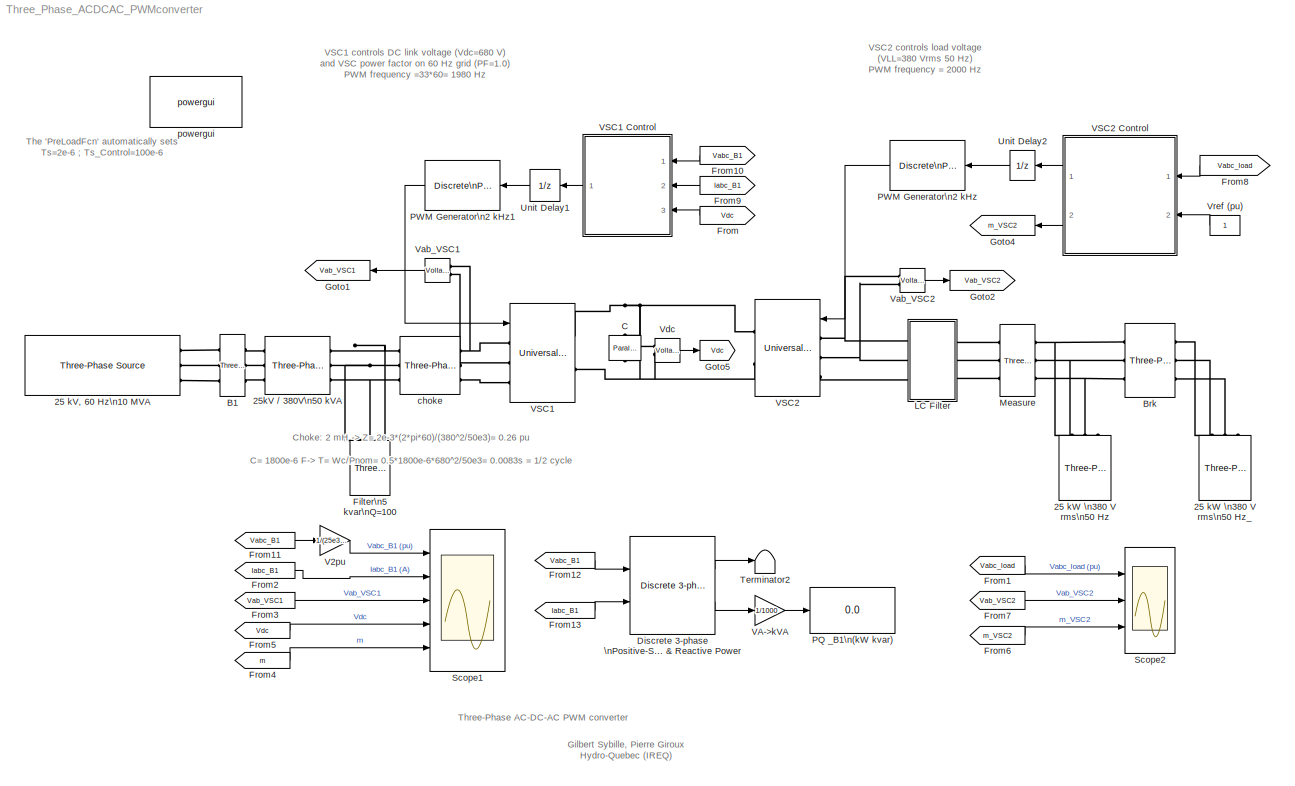
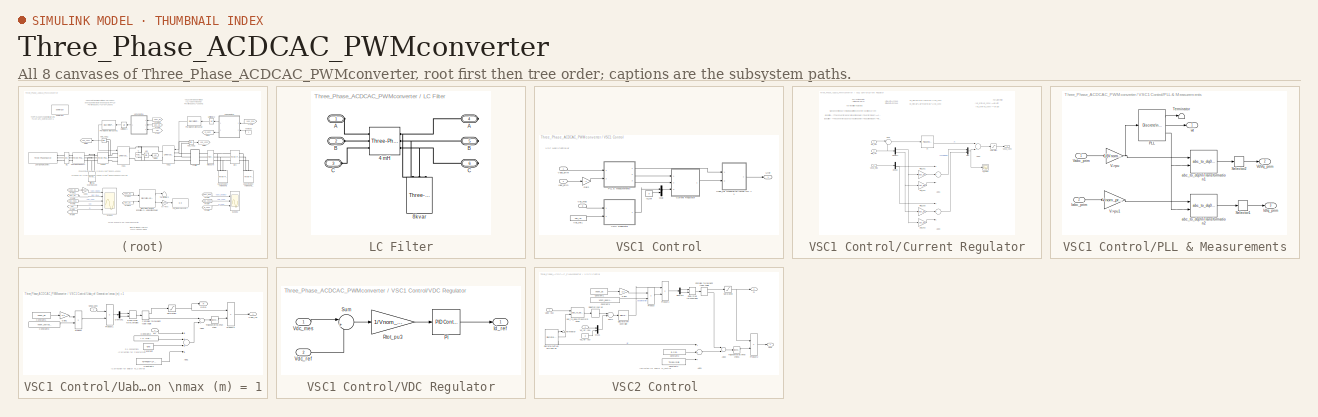
[diagram: thumbnail index - all 8 canvases of the model, root first then tree order]
MODEL Three_Phase_ACDCAC_PWMconverter
KIND model
CONFIG PreLoadFcn = Ts=2e-6;\nTs_Control=100e-6;
BLOCK [Reference] 25 kV, 60 Hz\n10 MVA  REF=powerlib/Electrical\nSources/Three-Phase Source
  BaseVoltage = 25e3
  BusType = swing
  Frequency = 60
  Inductance = 25e3^2/10e6/377
  InternalConnection = Yg
  NonIdealSource = on
  PhaseAngle = 0
  PhaseAngles_phases = [0 -120 +120]
  Ports = [0, 0, 0, 0, 0, 0, 3]
  Pref = 0
  Prefabc = [10e3, 10e3, 10e3]
  Qmax = inf
  Qmin = -inf
  Qref = 0
  Qrefabc = [0, 0, 0]
  RTWMemSecDataConstants = Inherit from model
  RTWMemSecDataInternal = Inherit from model
  RTWMemSecDataParameters = Inherit from model
  RTWMemSecFuncExecute = Inherit from model
  RTWMemSecFuncInitTerm = Inherit from model
  Resistance = 25e3^2/10e6/5
  SID = 1
  ShortCircuitLevel = 10e6
  SourceBlock = powerlib/Electrical\nSources/Three-Phase Source
  SourceProductBaseCode = PS
  SourceProductName = Simscape Electrical
  SourceType = Three-Phase Source
  SpecifyImpedance = on
  Voltage = 25e3
  VoltagePhases = off
  Voltage_phases = [25e3 25e3 25e3]/sqrt(3)
  XRratio = 5
BLOCK [Reference] 25 kW \n380 V rms\n50 Hz  REF=powerlib/Elements/Three-Phase\nParallel RLC Load
  ActivePower = 25e3
  AttributesFormatString = \\n
  CapacitivePower = 0
  Configuration = Y (grounded)
  InductivePower = 0
  LConnTagsString = A|B|C
  LoadType = constant Z
  Measurements = None
  NominalFrequency = 50
  NominalVoltage = 380
  Pabc = [10e3 9e3 11e3]
  Pabcp = [10e3 9e3 11e3]
  Ports = [0, 0, 0, 0, 0, 3]
  QCabc = [100 90 110]
  QCabcp = [100 90 110]
  QLabc = [100 90 110]
  QLabcp = [100 90 110]
  SID = 3
  SourceBlock = powerlib/Elements/Three-Phase\nParallel RLC Load
  SourceProductBaseCode = PS
  SourceProductName = Simscape Electrical
  SourceType = Three-Phase Parallel RLC Load
  UnbalancedPower = off
  Vabc = [1e3 1e3 1e3]
  Vabcp = [1e3 1e3 1e3]
BLOCK [Reference] 25 kW \n380 V rms\n50 Hz_  REF=powerlib/Elements/Three-Phase\nParallel RLC Load
  ActivePower = 25e3
  AttributesFormatString = \\n
  CapacitivePower = 0
  Configuration = Y (grounded)
  InductivePower = 0
  LConnTagsString = A|B|C
  LoadType = constant Z
  Measurements = None
  NominalFrequency = 50
  NominalVoltage = 380
  Pabc = [10e3 9e3 11e3]
  Pabcp = [10e3 9e3 11e3]
  Ports = [0, 0, 0, 0, 0, 3]
  QCabc = [100 90 110]
  QCabcp = [100 90 110]
  QLabc = [100 90 110]
  QLabcp = [100 90 110]
  SID = 178
  SourceBlock = powerlib/Elements/Three-Phase\nParallel RLC Load
  SourceProductBaseCode = PS
  SourceProductName = Simscape Electrical
  SourceType = Three-Phase Parallel RLC Load
  UnbalancedPower = off
  Vabc = [1e3 1e3 1e3]
  Vabcp = [1e3 1e3 1e3]
BLOCK [Reference] 25kV // 380V\n50 kVA  REF=powerlib/Elements/Three-Phase\nTransformer\n(Two Windings)
  AttributesFormatString = \\n
  BreakLoop = off
  CoreType = Three single-phase transformers
  DataFile = 'hysteresis'
  DataType = off
  DiscreteSolver = Trapezoidal iterative
  Hysteresis = off
  InitialFluxes = [ 0.8 , -0.8 , 0.7 ]
  L0 = 0.5
  Lm = 200
  Measurements = None
  NominalPower = [ 50e3 , 60 ]
  Ports = [0, 0, 0, 0, 0, 3, 3]
  RTWMemSecDataConstants = Inherit from model
  RTWMemSecDataInternal = Inherit from model
  RTWMemSecDataParameters = Inherit from model
  RTWMemSecFuncExecute = Inherit from model
  RTWMemSecFuncInitTerm = Inherit from model
  Rm = 200
  SID = 2
  Saturation = [ 0,0  ;  0.005,1.2  ;  1.0,1.4 ]
  SetInitialFlux = off
  SetSaturation = off
  SourceBlock = powerlib/Elements/Three-Phase\nTransformer\n(Two Windings)
  SourceProductBaseCode = PS
  SourceProductName = Simscape Electrical
  SourceType = Three-Phase Transformer (Two Windings)
  TransfoNumber = 0
  UNITS = pu
  Winding1 = [ 25e3 , 0.004 , 0.02 ]
  Winding1Connection = Yg
  Winding2 = [ 380, 0.004 , 0.02 ]
  Winding2Connection = Delta (D1)
BLOCK [Reference] B1  REF=powerlib/Measurements/Three-Phase\nV-I Measurement
  CurrentMeasurement = yes
  Ipu = off
  LabelI = Iabc_B1
  LabelV = Vabc_B1
  OutputType = Magnitude
  PSBequivalent = 0
  Pbase = 100e6
  PhasorSimulation = off
  Ports = [0, 0, 0, 0, 0, 3, 3]
  RTWMemSecDataConstants = Inherit from model
  RTWMemSecDataInternal = Inherit from model
  RTWMemSecDataParameters = Inherit from model
  RTWMemSecFuncExecute = Inherit from model
  RTWMemSecFuncInitTerm = Inherit from model
  SID = 50
  SetLabelI = on
  SetLabelV = on
  SourceBlock = powerlib/Measurements/Three-Phase\nV-I Measurement
  SourceProductBaseCode = PS
  SourceProductName = Simscape Electrical
  SourceType = Three-Phase VI Measurement
  Vbase = 500e3
  VoltageMeasurement = phase-to-ground
  Vpu = off
  VpuLL = off
BLOCK [Reference] Brk  REF=powerlib/Elements/Three-Phase Breaker
  BreakerResistance = 0.001
  External = off
  InitialState = open
  Measurements = None
  Ports = [0, 0, 0, 0, 0, 3, 3]
  RTWMemSecDataConstants = Inherit from model
  RTWMemSecDataInternal = Inherit from model
  RTWMemSecDataParameters = Inherit from model
  RTWMemSecFuncExecute = Inherit from model
  RTWMemSecFuncInitTerm = Inherit from model
  SID = 179
  SnubberCapacitance = inf
  SnubberResistance = 1e5
  SourceBlock = powerlib/Elements/Three-Phase Breaker
  SourceProductBaseCode = PS
  SourceProductName = Simscape Electrical
  SourceType = Three-Phase Breaker
  SwitchA = on
  SwitchB = on
  SwitchC = on
  SwitchTimes = [0.15]
BLOCK [Reference] C  REF=powerlib/Elements/Parallel RLC Branch
  AttributesFormatString = \\n
  BranchType = C
  Capacitance = 1800e-06
  Inductance = inf
  InitialCurrent = 0
  InitialVoltage = 0
  LConnTagsString = a
  Measurements = None
  Ports = [0, 0, 0, 0, 0, 1, 1]
  RConnTagsString = __new0
  Resistance = inf
  SID = 4
  SetiL0 = off
  Setx0 = off
  SourceBlock = powerlib/Elements/Parallel RLC Branch
  SourceProductBaseCode = PS
  SourceProductName = Simscape Electrical
  SourceType = Parallel RLC Branch
BLOCK [Reference] Discrete 3-phase \nPositive-Sequence \nActive & Reactive Power  REF=powerlib_extras/Discrete\nMeasurements/Discrete 3-phase \nPositive-Sequence \nActive & Reactive Power
  Freq = 60
  Par_Iinit = [0 0]
  Par_Vinit = [0 0]
  Ports = [2, 2]
  RTWMemSecDataConstants = Inherit from model
  RTWMemSecDataInternal = Inherit from model
  RTWMemSecDataParameters = Inherit from model
  RTWMemSecFuncExecute = Inherit from model
  RTWMemSecFuncInitTerm = Inherit from model
  SID = 188
  SourceBlock = powerlib_extras/Discrete\nMeasurements/Discrete 3-phase \nPositive-Sequence \nActive & Reactive Power
  SourceProductBaseCode = PS
  SourceProductName = Simscape Electrical
  SourceType = Discrete 3-phase Positive-Sequence Active & Reactive Power
  Ts = Ts
BLOCK [Reference] Filter\n5 kvar\nQ=100  REF=powerlib/Elements/Three-Phase\nSeries RLC Load
  ActivePower = 5e3/100
  AttributesFormatString = \\n
  CapacitivePower = 5e3
  Configuration = Y (grounded)
  InductivePower = 0
  LConnTagsString = A|B|C
  LoadType = constant Z
  Measurements = None
  NominalFrequency = 60
  NominalVoltage = 380
  Pabc = [10e3 9e3 11e3]
  Pabcp = [10e3 9e3 11e3]
  Ports = [0, 0, 0, 0, 0, 3]
  QCabc = [100 90 110]
  QCabcp = [100 90 110]
  QLabc = [100 90 110]
  QLabcp = [100 90 110]
  SID = 155
  SourceBlock = powerlib/Elements/Three-Phase\nSeries RLC Load
  SourceProductBaseCode = PS
  SourceProductName = Simscape Electrical
  SourceType = Three-Phase Series RLC Load
  UnbalancedPower = off
  Vabc = [1e3 1e3 1e3]
  Vabcp = [1e3 1e3 1e3]
BLOCK [From] From
  GotoTag = Vdc
  SID = 52
  TagVisibility = global
BLOCK [From] From1
  GotoTag = Vabc_load
  SID = 148
  TagVisibility = global
BLOCK [From] From10
  CloseFcn = tagdialog Close
  GotoTag = Vabc_B1
  SID = 53
  TagVisibility = global
BLOCK [From] From11
  CloseFcn = tagdialog Close
  GotoTag = Vabc_B1
  SID = 135
  TagVisibility = global
BLOCK [From] From12
  CloseFcn = tagdialog Close
  GotoTag = Vabc_B1
  SID = 180
  TagVisibility = global
BLOCK [From] From13
  CloseFcn = tagdialog Close
  GotoTag = Iabc_B1
  SID = 181
  TagVisibility = global
BLOCK [From] From2
  CloseFcn = tagdialog Close
  GotoTag = Iabc_B1
  SID = 134
  TagVisibility = global
BLOCK [From] From3
  CloseFcn = tagdialog Close
  GotoTag = Vab_VSC1
  SID = 136
  TagVisibility = global
BLOCK [From] From4
  CloseFcn = tagdialog Close
  GotoTag = m
  SID = 139
  TagVisibility = global
BLOCK [From] From5
  CloseFcn = tagdialog Close
  GotoTag = Vdc
  SID = 149
  TagVisibility = global
BLOCK [From] From6
  GotoTag = m_VSC2
  SID = 145
  TagVisibility = global
BLOCK [From] From7
  GotoTag = Vab_VSC2
  SID = 147
  TagVisibility = global
BLOCK [From] From8
  CloseFcn = tagdialog Close
  GotoTag = Vabc_load
  SID = 157
  TagVisibility = global
BLOCK [From] From9
  CloseFcn = tagdialog Close
  GotoTag = Iabc_B1
  SID = 54
  TagVisibility = global
BLOCK [Goto] Goto1
  GotoTag = Vab_VSC1
  SID = 141
  TagVisibility = global
BLOCK [Goto] Goto2
  GotoTag = Vab_VSC2
  SID = 142
  TagVisibility = global
BLOCK [Goto] Goto4
  GotoTag = m_VSC2
  SID = 150
  TagVisibility = global
BLOCK [Goto] Goto5
  GotoTag = Vdc
  SID = 131
  TagVisibility = global
BLOCK [SubSystem] LC Filter
  Ports = [0, 0, 0, 0, 0, 3, 3]
  RequestExecContextInheritance = off
  SID = 8
BLOCK [Reference] LC Filter/4 mH   REF=powerlib/Elements/Three-Phase\nSeries RLC Branch
  AttributesFormatString = \\n
  BranchType = L
  Capacitance = inf
  Inductance = 4e-3
  LConnTagsString = A|B|C
  Measurements = None
  Ports = [0, 0, 0, 0, 0, 3, 3]
  RConnTagsString = A|B|C
  Resistance = 0
  SID = 9
  SourceBlock = powerlib/Elements/Three-Phase\nSeries RLC Branch
  SourceProductBaseCode = PS
  SourceProductName = Simscape Electrical
  SourceType = Three-Phase Series RLC Branch
BLOCK [Reference] LC Filter/8kvar  REF=powerlib/Elements/Three-Phase\nSeries RLC Load
  ActivePower = 8e3/100
  AttributesFormatString = \\n
  CapacitivePower = 8e3
  Configuration = Y (grounded)
  InductivePower = 0
  LConnTagsString = A|B|C
  LoadType = constant Z
  Measurements = None
  NominalFrequency = 50
  NominalVoltage = 380
  Pabc = [10e3 9e3 11e3]
  Pabcp = [10e3 9e3 11e3]
  Ports = [0, 0, 0, 0, 0, 3]
  QCabc = [100 90 110]
  QCabcp = [100 90 110]
  QLabc = [100 90 110]
  QLabcp = [100 90 110]
  SID = 10
  SourceBlock = powerlib/Elements/Three-Phase\nSeries RLC Load
  SourceProductBaseCode = PS
  SourceProductName = Simscape Electrical
  SourceType = Three-Phase Series RLC Load
  UnbalancedPower = off
  Vabc = [1e3 1e3 1e3]
  Vabcp = [1e3 1e3 1e3]
BLOCK [PMIOPort] LC Filter/A
  SID = 11
  Side = Left
BLOCK [PMIOPort] LC Filter/A 
  Port = 4
  SID = 14
  Side = Right
BLOCK [PMIOPort] LC Filter/B
  Port = 2
  SID = 12
  Side = Left
BLOCK [PMIOPort] LC Filter/B 
  Port = 5
  SID = 15
  Side = Right
BLOCK [PMIOPort] LC Filter/C
  Port = 3
  SID = 13
  Side = Left
BLOCK [PMIOPort] LC Filter/C 
  Port = 6
  SID = 16
  Side = Right
BLOCK [Reference] Measure  REF=powerlib/Measurements/Three-Phase\nV-I Measurement
  CurrentMeasurement = no
  Ipu = off
  LabelI = I1
  LabelV = Vabc_load
  OutputType = Magnitude
  PSBequivalent = 0
  Pbase = 1e3
  PhasorSimulation = off
  Ports = [0, 0, 0, 0, 0, 3, 3]
  RTWMemSecDataConstants = Inherit from model
  RTWMemSecDataInternal = Inherit from model
  RTWMemSecDataParameters = Inherit from model
  RTWMemSecFuncExecute = Inherit from model
  RTWMemSecFuncInitTerm = Inherit from model
  SID = 17
  SetLabelI = off
  SetLabelV = on
  SourceBlock = powerlib/Measurements/Three-Phase\nV-I Measurement
  SourceProductBaseCode = PS
  SourceProductName = Simscape Electrical
  SourceType = Three-Phase VI Measurement
  Vbase = 380
  VoltageMeasurement = phase-to-ground
  Vpu = on
  VpuLL = off
BLOCK [Display] PQ _B1\n(kW kvar)
  Decimation = 2000
  Format = bank
  Ports = [1]
  SID = 183
BLOCK [Reference] PWM Generator\n2 kHz  REF=powerlib_extras/Discrete \nControl Blocks/Discrete\nPWM Generator
  Fc = 2000
  Freq = 60
  GeneratorMode = 3-arm  bridge (6 pulses)
  Internal = off
  Phase = 0
  Ports = [1, 1]
  RTWMemSecDataConstants = Inherit from model
  RTWMemSecDataInternal = Inherit from model
  RTWMemSecDataParameters = Inherit from model
  RTWMemSecFuncExecute = Inherit from model
  RTWMemSecFuncInitTerm = Inherit from model
  SID = 5
  SourceBlock = powerlib_extras/Discrete \nControl Blocks/Discrete\nPWM Generator
  SourceProductBaseCode = PS
  SourceProductName = Simscape Electrical
  SourceType = Discrete PWM Generator
  Ts = Ts
  mIndex = 0.4
BLOCK [Reference] PWM Generator\n2 kHz1  REF=powerlib_extras/Discrete \nControl Blocks/Discrete\nPWM Generator
  Fc = 33*60
  Freq = 60
  GeneratorMode = 3-arm  bridge (6 pulses)
  Internal = off
  Phase = 0
  Ports = [1, 1]
  RTWMemSecDataConstants = Inherit from model
  RTWMemSecDataInternal = Inherit from model
  RTWMemSecDataParameters = Inherit from model
  RTWMemSecFuncExecute = Inherit from model
  RTWMemSecFuncInitTerm = Inherit from model
  SID = 152
  SourceBlock = powerlib_extras/Discrete \nControl Blocks/Discrete\nPWM Generator
  SourceProductBaseCode = PS
  SourceProductName = Simscape Electrical
  SourceType = Discrete PWM Generator
  Ts = Ts
  mIndex = 0.4
BLOCK [Scope] Scope1
  Floating = off
  NumInputPorts = 5
  Ports = [5]
  SID = 137
  ScopeSpecificationString = Simulink.scopes.TimeScopeBlockCfg('CurrentConfiguration', extmgr.ConfigurationSet(extmgr.Configuration('Core','General UI',true),extmgr.Configuration('Core','Source UI',true),extmgr.Configuration('Sources','WiredSimulink',true,'DataLoggingVariableName','ScopeData1','DataLoggingSaveFormat','StructureWithTime','DataLoggingDecimation','1','DataLoggingDecimateData',true),extmgr.Configuration('Visuals'...<+4531ch>
BLOCK [Scope] Scope2
  Floating = off
  NumInputPorts = 3
  Ports = [3]
  SID = 21
  ScopeSpecificationString = C++SS(StrPVP('Location','[237, 89, 821, 859]'),StrPVP('Open','off'),StrPVP('ZoomMode','yonly'),MxPVP('AxesTitles',54,'struct(''axes1'',''%<SignalLabel>'',''axes2'',''%<SignalLabel>'',''axes3'',''%<SignalLabel>'')'),MxPVP('ScopeGraphics',57,'struct(''FigureColor'',''[0.5 0.5 0.5]'',''AxesColor'',''[0 0 0]'',''AxesTickColor'',''[1 1 1]'',''LineColors'',''[1 1 0;1 0 1;0 1 1;1 0 0;0 1 0;0 0 1]'',''Lin...<+492ch>
BLOCK [Terminator] Terminator2
  SID = 185
BLOCK [UnitDelay] Unit Delay1
  HasFrameUpgradeWarning = on
  SID = 177
  SampleTime = Ts_Control
BLOCK [UnitDelay] Unit Delay2
  HasFrameUpgradeWarning = on
  SID = 176
  SampleTime = Ts_Control
BLOCK [Gain] V2pu
  Gain = 1/(25e3/sqrt(3)*sqrt(2))
  OutDataTypeStr = Inherit: Inherit via internal rule
  ParamDataTypeStr = Inherit: Inherit via internal rule
  SID = 138
  SaturateOnIntegerOverflow = off
BLOCK [Gain] VA->kVA
  Gain = 1/1000
  OutDataTypeStr = Inherit: Inherit via internal rule
  ParamDataTypeStr = Inherit: Inherit via internal rule
  SID = 186
  SaturateOnIntegerOverflow = off
BLOCK [Reference] VSC1  REF=powerlib/Power\nElectronics/Universal Bridge
  Arms = 3
  Device = IGBT / Diodes
  ForwardVoltage = 0
  ForwardVoltages = [  0  0  ]
  GTOparameters = [ 10e-6 , 20e-6 ]
  IGBTparameters = [ 0  0  ]
  Lon = 0
  Measurements = None
  Measurements_2 = None
  Ports = [1, 0, 0, 0, 0, 3, 2]
  RTWMemSecDataConstants = Inherit from model
  RTWMemSecDataInternal = Inherit from model
  RTWMemSecDataParameters = Inherit from model
  RTWMemSecFuncExecute = Inherit from model
  RTWMemSecFuncInitTerm = Inherit from model
  Ron = 1e-3
  SID = 130
  SnubberCapacitance = inf
  SnubberResistance = 1e5
  SourceBlock = powerlib/Power\nElectronics/Universal Bridge
  SourceProductBaseCode = PS
  SourceProductName = Simscape Electrical
  SourceType = Universal Bridge
  converterType = Rectifier
BLOCK [SubSystem] VSC1 Control
  Ports = [3, 1]
  RequestExecContextInheritance = off
  SID = 55
BLOCK [SubSystem] VSC1 Control/Current Regulator
  Ports = [3, 1]
  RequestExecContextInheritance = off
  SID = 59
BLOCK [Sum] VSC1 Control/Current Regulator/Add1
  InputSameDT = off
  Inputs = ++-
  OutDataTypeStr = Inherit: Inherit via internal rule
  Ports = [3, 1]
  SID = 63
  SaturateOnIntegerOverflow = off
BLOCK [Sum] VSC1 Control/Current Regulator/Add2
  InputSameDT = off
  OutDataTypeStr = Inherit: Inherit via internal rule
  Ports = [2, 1]
  SID = 64
  SaturateOnIntegerOverflow = off
BLOCK [Sum] VSC1 Control/Current Regulator/Add3
  InputSameDT = off
  Inputs = +++
  OutDataTypeStr = Inherit: Inherit via internal rule
  Ports = [3, 1]
  SID = 65
  SaturateOnIntegerOverflow = off
BLOCK [Demux] VSC1 Control/Current Regulator/Demux
  DisplayOption = bar
  Outputs = 2
  Ports = [1, 2]
  SID = 66
BLOCK [Demux] VSC1 Control/Current Regulator/Demux1
  DisplayOption = bar
  Outputs = 2
  Ports = [1, 2]
  SID = 67
BLOCK [Inport] VSC1 Control/Current Regulator/IdIq_mes
  IconDisplay = Port number
  Port = 2
  PortDimensions = 2
  SID = 61
BLOCK [Inport] VSC1 Control/Current Regulator/IdIq_ref
  IconDisplay = Port number
  Port = 3
  PortDimensions = 2
  SID = 62
BLOCK [Gain] VSC1 Control/Current Regulator/Ltot_pu1
  Gain = Ltot_pu
  SID = 68
BLOCK [Gain] VSC1 Control/Current Regulator/Ltot_pu2
  Gain = Ltot_pu
  SID = 69
BLOCK [Mux] VSC1 Control/Current Regulator/Mux
  DisplayOption = bar
  Inputs = 2
  Ports = [2, 1]
  SID = 70
BLOCK [Reference] VSC1 Control/Current Regulator/PI  REF=simulink/Continuous/PID Controller
  AWVariant = Passthrough
  AntiWindupMode = none
  Controller = PI
  ControllerParametersSource = internal
  D = 0
  DGainOutDataTypeStr = Inherit: Inherit via internal rule
  DOutMax = []
  DOutMin = []
  DParamDataTypeStr = Inherit: Inherit via internal rule
  DParamMax = []
  DParamMin = []
  DProdOutDataTypeStr = Inherit: Inherit via internal rule
  DVariant = Disabled
  DerivativeFilterVariant = Disabled
  DifferentiatorICPrevScaledInput = 0
  DifferentiatorOutDataTypeStr = Inherit: Inherit via internal rule
  DifferentiatorOutMax = []
  DifferentiatorOutMin = []
  DivideOutDataTypeStr = Inherit: Inherit via internal rule
  DivideOutMax = []
  DivideOutMin = []
  ExternalReset = none
  ExternalResetVariant = Disabled
  FdbkBlocksVariant = Forward
  FilterContinuousStateAttributes = ''
  FilterDiffDenAccumDataTypeStr = Inherit: Inherit via internal rule
  FilterDiffDenProductOutputDataTypeStr = Inherit: Inherit via internal rule
  FilterDiffNumAccumDataTypeStr = Inherit: Inherit via internal rule
  FilterDiffNumProductOutputDataTypeStr = Inherit: Inherit via internal rule
  FilterDiffOutCoefDataTypeStr = Inherit: Inherit via internal rule
  FilterDiffOutCoefMax = []
  FilterDiffOutCoefMin = []
  FilterICVariant = Disabled
  FilterMethod = Forward Euler
  FilterOutDataTypeStr = Inherit: Inherit via internal rule
  FilterOutMax = []
  FilterOutMin = []
  FilterRTWStateStorageClass = Auto
  FilterStateMustResolveToSignalObject = off
  Form = Parallel
  I = Ki_Ireg
  IGainOutDataTypeStr = Inherit: Inherit via internal rule
  IOutMax = []
  IOutMin = []
  IParamDataTypeStr = Inherit: Inherit via internal rule
  IParamMax = []
  IParamMin = []
  IProdOutDataTypeStr = Inherit: Inherit via internal rule
  IVariant = InternalParameters
  IdealPFdbkVariant = Disabled
  IdealPVariant = Disabled
  IgnoreLimit = off
  InitialConditionForFilter = 0
  InitialConditionForIntegrator = 0
  InitialConditionSetting = Auto
  InitialConditionSource = internal
  IntegratorContinuousStateAttributes = ''
  IntegratorICVariant = InternalICs
  IntegratorMethod = Forward Euler
  IntegratorOutDataTypeStr = Inherit: Inherit via internal rule
  IntegratorOutMax = []
  IntegratorOutMin = []
  IntegratorRTWStateStorageClass = Auto
  IntegratorStateMustResolveToSignalObject = off
  IntegratorVariant = Discrete
  Kb = 1
  KbOutDataTypeStr = Inherit: Inherit via internal rule
  KbOutMax = []
  KbOutMin = []
  KbParamDataTypeStr = Inherit: Inherit via internal rule
  KbParamMax = []
  KbParamMin = []
  Kt = 1
  KtOutDataTypeStr = Inherit: Inherit via internal rule
  KtOutMax = []
  KtOutMin = []
  KtParamDataTypeStr = Inherit: Inherit via internal rule
  KtParamMax = []
  KtParamMin = []
  LimitOutput = on
  LinearizeAsGain = off
  LockScale = off
  LowerSaturationLimit = -2
  N = 100
  NCopyVariant = Disabled_SignalSpec
  NGainOutDataTypeStr = Inherit: Inherit via internal rule
  NOutMax = []
  NOutMin = []
  NParamDataTypeStr = Inherit: Inherit via internal rule
  NParamMax = []
  NParamMin = []
  NProdOutDataTypeStr = Inherit: Inherit via internal rule
  NVariant = Disabled
  P = Kp_Ireg
  PCopyVariant = Disabled
  PGainOutDataTypeStr = Inherit: Inherit via internal rule
  POutMax = []
  POutMin = []
  PParamDataTypeStr = Inherit: Inherit via internal rule
  PParamMax = []
  PParamMin = []
  PProdOutDataTypeStr = Inherit: Inherit via internal rule
  ParallelPVariant = InternalParameters
  Ports = [1, 1]
  RTWMemSecDataConstants = Inherit from model
  RTWMemSecDataInternal = Inherit from model
  RTWMemSecDataParameters = Inherit from model
  RTWMemSecFuncExecute = Inherit from model
  RTWMemSecFuncInitTerm = Inherit from model
  ReciprocalOutDataTypeStr = Inherit: Inherit via internal rule
  ReciprocalOutMax = []
  ReciprocalOutMin = []
  RndMeth = Floor
  SID = 71
  SampleTime = Ts
  SatFdbkVariant = Disabled
  SatVariant = Enabled
  SaturateOnIntegerOverflow = off
  SaturationOutDataTypeStr = Inherit: Same as input
  SaturationOutMax = []
  SaturationOutMin = []
  SourceBlock = simulink/Continuous/PID Controller
  SourceProductBaseCode = SL
  SourceProductName = Simulink
  SourceType = PID 1dof
  SumAccumDataTypeStr = Inherit: Inherit via internal rule
  SumDAccumDataTypeStr = Inherit: Inherit via internal rule
  SumDOutDataTypeStr = Inherit: Inherit via internal rule
  SumDOutMax = []
  SumDOutMin = []
  SumDenAccumDataTypeStr = Inherit: Inherit via internal rule
  SumDenOutDataTypeStr = Inherit: Inherit via internal rule
  SumDenOutMax = []
  SumDenOutMin = []
  SumFdbkVariant = Disabled
  SumI1AccumDataTypeStr = Inherit: Inherit via internal rule
  SumI1OutDataTypeStr = Inherit: Inherit via internal rule
  SumI1OutMax = []
  SumI1OutMin = []
  SumI2AccumDataTypeStr = Inherit: Inherit via internal rule
  SumI2OutDataTypeStr = Inherit: Inherit via internal rule
  SumI2OutMax = []
  SumI2OutMin = []
  SumI3AccumDataTypeStr = Inherit: Inherit via internal rule
  SumI3OutDataTypeStr = Inherit: Inherit via internal rule
  SumI3OutMax = []
  SumI3OutMin = []
  SumI4AccumDataTypeStr = Inherit: Inherit via internal rule
  SumI4OutDataTypeStr = Inherit: Inherit via internal rule
  SumI4OutMax = []
  SumI4OutMin = []
  SumNumAccumDataTypeStr = Inherit: Inherit via internal rule
  SumNumOutDataTypeStr = Inherit: Inherit via internal rule
  SumNumOutMax = []
  SumNumOutMin = []
  SumOutDataTypeStr = Inherit: Inherit via internal rule
  SumOutMax = []
  SumOutMin = []
  SumVariant = Sum_PI
  TRSumVariant = Passthrough
  TRVariant = Disabled
  TimeDomain = Discrete-time
  TrackingMode = off
  TunerSelectOption = Transfer Function Based (PID Tuner App)
  UpperSaturationLimit = 2
  UseFilter = on
  ZeroCross = on
BLOCK [Scope] VSC1 Control/Current Regulator/PI_Ireg1
  Floating = off
  NumInputPorts = 1
  Ports = [1]
  SID = 72
  ScopeSpecificationString = C++SS(StrPVP('Location','[320, 533, 983, 1080]'),StrPVP('Open','off'),StrPVP('ZoomMode','yonly'),MxPVP('AxesTitles',54,'struct(''axes1'',''%<SignalLabel>'')'),MxPVP('ScopeGraphics',57,'struct(''FigureColor'',''[0.5 0.5 0.5]'',''AxesColor'',''[0 0 0]'',''AxesTickColor'',''[1 1 1]'',''LineColors'',''[1 1 0;1 0 1;0 1 1;1 0 0;0 1 0;0 0 1]'',''LineStyles'',''-|-|-|-|-|-'',''LineWidths'',''[0.5 0.5 0.5 ...<+350ch>
BLOCK [Gain] VSC1 Control/Current Regulator/Rtot_pu1
  Gain = Rtot_pu
  SID = 73
BLOCK [Gain] VSC1 Control/Current Regulator/Rtot_pu5
  Gain = Rtot_pu
  SID = 74
BLOCK [Saturate] VSC1 Control/Current Regulator/Saturation
  InputPortMap = u0
  LowerLimit = -2
  Ports = [1, 1]
  SID = 75
  UpperLimit = 2
BLOCK [Sum] VSC1 Control/Current Regulator/Sum
  IconShape = round
  InputSameDT = off
  Inputs = |-+
  OutDataTypeStr = Inherit: Inherit via internal rule
  Ports = [2, 1]
  SID = 76
  SaturateOnIntegerOverflow = off
BLOCK [Outport] VSC1 Control/Current Regulator/VdVq_conv
  IconDisplay = Port number
  SID = 77
BLOCK [Inport] VSC1 Control/Current Regulator/VdVq_mes
  IconDisplay = Port number
  PortDimensions = 2
  SID = 60
BLOCK [Gain] VSC1 Control/Gain
  Gain = -1
  OutDataTypeStr = Inherit: Inherit via internal rule
  ParamDataTypeStr = Inherit: Inherit via internal rule
  SID = 154
  SaturateOnIntegerOverflow = off
BLOCK [Inport] VSC1 Control/Iabc_prim
  IconDisplay = Port number
  Port = 2
  PortDimensions = 3
  SID = 57
BLOCK [Constant] VSC1 Control/Iq_ref
  SID = 78
  Value = 0
BLOCK [Mux] VSC1 Control/Mux
  DisplayOption = bar
  Inputs = 2
  Ports = [2, 1]
  SID = 79
BLOCK [SubSystem] VSC1 Control/PLL & Measurements
  Ports = [2, 3]
  RequestExecContextInheritance = off
  SID = 80
BLOCK [Inport] VSC1 Control/PLL & Measurements/Iabc_prim
  IconDisplay = Port number
  Port = 2
  SID = 82
BLOCK [Outport] VSC1 Control/PLL & Measurements/IdIq_prim
  IconDisplay = Port number
  Port = 3
  SID = 94
BLOCK [Reference] VSC1 Control/PLL & Measurements/PLL  REF=powerlib_extras/Discrete \nControl Blocks/Discrete\n3-phase PLL
  AGC = off
  Fmin = 45
  ParK = [60 1400]
  Par_Init = [-0.57  Fnom]
  Ports = [1, 3]
  RTWMemSecDataConstants = Inherit from model
  RTWMemSecDataInternal = Inherit from model
  RTWMemSecDataParameters = Inherit from model
  RTWMemSecFuncExecute = Inherit from model
  RTWMemSecFuncInitTerm = Inherit from model
  SID = 84
  SourceBlock = powerlib_extras/Discrete \nControl Blocks/Discrete\n3-phase PLL
  SourceProductBaseCode = PS
  SourceProductName = Simscape Electrical
  SourceType = Discrete 3-phase PLL
  Ts = Ts
BLOCK [Selector] VSC1 Control/PLL & Measurements/Selector1
  IndexOptions = Index vector (dialog)
  Indices = [1 2]
  InputPortWidth = 3
  OutputSizes = 1
  Ports = [1, 1]
  SID = 85
BLOCK [Selector] VSC1 Control/PLL & Measurements/Selector2
  IndexOptions = Index vector (dialog)
  Indices = [1 2]
  InputPortWidth = 3
  OutputSizes = 1
  Ports = [1, 1]
  SID = 86
BLOCK [Terminator] VSC1 Control/PLL & Measurements/Terminator
  SID = 87
BLOCK [Gain] VSC1 Control/PLL & Measurements/V->pu
  Gain = 1/(Vnom_prim*sqrt(2)/sqrt(3))
  SID = 88
BLOCK [Gain] VSC1 Control/PLL & Measurements/V->pu1
  Gain = Vnom_prim*sqrt(3)/Pnom/sqrt(2)
  SID = 89
BLOCK [Inport] VSC1 Control/PLL & Measurements/Vabc_prim
  IconDisplay = Port number
  SID = 81
BLOCK [Outport] VSC1 Control/PLL & Measurements/VdVq_prim
  IconDisplay = Port number
  Port = 2
  SID = 93
BLOCK [Reference] VSC1 Control/PLL & Measurements/abc_to_dq0\nTransformation1  REF=powerlib_extras/Measurements/abc_to_dq0\nTransformation
  Ports = [2, 1]
  RTWMemSecDataConstants = Inherit from model
  RTWMemSecDataInternal = Inherit from model
  RTWMemSecDataParameters = Inherit from model
  RTWMemSecFuncExecute = Inherit from model
  RTWMemSecFuncInitTerm = Inherit from model
  SID = 90
  SourceBlock = powerlib_extras/Measurements/abc_to_dq0\nTransformation
  SourceProductBaseCode = PS
  SourceProductName = Simscape Electrical
  SourceType = abc to dq0 Transformation
BLOCK [Reference] VSC1 Control/PLL & Measurements/abc_to_dq0\nTransformation2  REF=powerlib_extras/Measurements/abc_to_dq0\nTransformation
  Ports = [2, 1]
  RTWMemSecDataConstants = Inherit from model
  RTWMemSecDataInternal = Inherit from model
  RTWMemSecDataParameters = Inherit from model
  RTWMemSecFuncExecute = Inherit from model
  RTWMemSecFuncInitTerm = Inherit from model
  SID = 91
  SourceBlock = powerlib_extras/Measurements/abc_to_dq0\nTransformation
  SourceProductBaseCode = PS
  SourceProductName = Simscape Electrical
  SourceType = abc to dq0 Transformation
BLOCK [Outport] VSC1 Control/PLL & Measurements/wt
  IconDisplay = Port number
  SID = 92
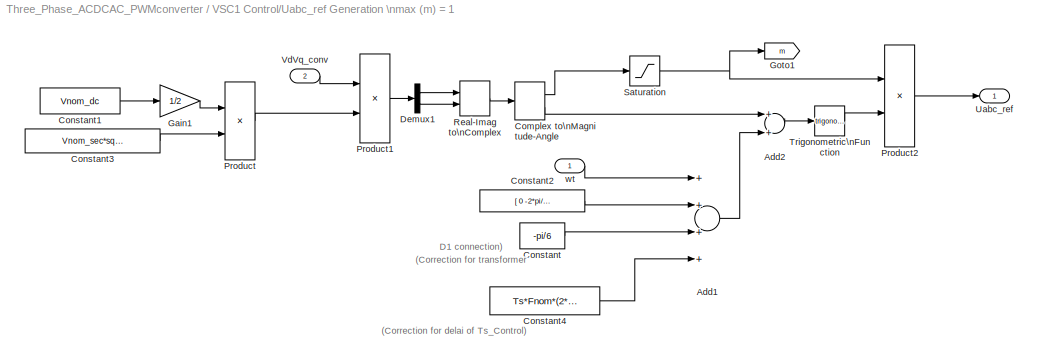
BLOCK [SubSystem] VSC1 Control/Uabc_ref Generation \nmax (m) = 1
  Ports = [2, 1]
  RequestExecContextInheritance = off
  SID = 97
BLOCK [Sum] VSC1 Control/Uabc_ref Generation \nmax (m) = 1/Add1
  InputSameDT = off
  Inputs = ++++
  OutDataTypeStr = Inherit: Inherit via internal rule
  Ports = [4, 1]
  SID = 100
  SaturateOnIntegerOverflow = off
BLOCK [Sum] VSC1 Control/Uabc_ref Generation \nmax (m) = 1/Add2
  InputSameDT = off
  OutDataTypeStr = Inherit: Inherit via internal rule
  Ports = [2, 1]
  SID = 101
  SaturateOnIntegerOverflow = off
BLOCK [ComplexToMagnitudeAngle] VSC1 Control/Uabc_ref Generation \nmax (m) = 1/Complex to\nMagnitude-Angle
  Ports = [1, 2]
  SID = 102
BLOCK [Constant] VSC1 Control/Uabc_ref Generation \nmax (m) = 1/Constant
  SID = 103
  Value = -pi/6
BLOCK [Constant] VSC1 Control/Uabc_ref Generation \nmax (m) = 1/Constant1
  SID = 104
  Value = Vnom_dc
BLOCK [Constant] VSC1 Control/Uabc_ref Generation \nmax (m) = 1/Constant2
  SID = 105
  Value = [ 0  -2*pi/3  2*pi/3  ]
BLOCK [Constant] VSC1 Control/Uabc_ref Generation \nmax (m) = 1/Constant3
  SID = 106
  Value = Vnom_sec*sqrt(2)/sqrt(3)
BLOCK [Constant] VSC1 Control/Uabc_ref Generation \nmax (m) = 1/Constant4
  SID = 107
  Value = Ts*Fnom*(2*pi)
BLOCK [Demux] VSC1 Control/Uabc_ref Generation \nmax (m) = 1/Demux1
  DisplayOption = bar
  Outputs = 2
  Ports = [1, 2]
  SID = 108
BLOCK [Gain] VSC1 Control/Uabc_ref Generation \nmax (m) = 1/Gain1
  Gain = 1/2
  OutDataTypeStr = Inherit: Inherit via internal rule
  ParamDataTypeStr = Inherit: Inherit via internal rule
  SID = 109
  SaturateOnIntegerOverflow = off
BLOCK [Goto] VSC1 Control/Uabc_ref Generation \nmax (m) = 1/Goto1
  GotoTag = m
  SID = 110
  TagVisibility = global
BLOCK [Product] VSC1 Control/Uabc_ref Generation \nmax (m) = 1/Product
  InputSameDT = off
  Inputs = */
  OutDataTypeStr = Inherit: Inherit via internal rule
  Ports = [2, 1]
  SID = 111
  SaturateOnIntegerOverflow = off
BLOCK [Product] VSC1 Control/Uabc_ref Generation \nmax (m) = 1/Product1
  InputSameDT = off
  Inputs = */
  OutDataTypeStr = Inherit: Inherit via internal rule
  Ports = [2, 1]
  SID = 112
  SaturateOnIntegerOverflow = off
BLOCK [Product] VSC1 Control/Uabc_ref Generation \nmax (m) = 1/Product2
  InputSameDT = off
  Inputs = **
  OutDataTypeStr = Inherit: Inherit via internal rule
  Ports = [2, 1]
  SID = 113
  SaturateOnIntegerOverflow = off
BLOCK [RealImagToComplex] VSC1 Control/Uabc_ref Generation \nmax (m) = 1/Real-Imag to\nComplex
  Ports = [2, 1]
  SID = 114
BLOCK [Saturate] VSC1 Control/Uabc_ref Generation \nmax (m) = 1/Saturation
  InputPortMap = u0
  LowerLimit = 0
  Ports = [1, 1]
  SID = 115
  UpperLimit = 1
BLOCK [Trigonometry] VSC1 Control/Uabc_ref Generation \nmax (m) = 1/Trigonometric\nFunction
  Ports = [1, 1]
  SID = 116
BLOCK [Outport] VSC1 Control/Uabc_ref Generation \nmax (m) = 1/Uabc_ref
  IconDisplay = Port number
  SID = 117
BLOCK [Inport] VSC1 Control/Uabc_ref Generation \nmax (m) = 1/VdVq_conv
  IconDisplay = Port number
  Port = 2
  SID = 99
BLOCK [Inport] VSC1 Control/Uabc_ref Generation \nmax (m) = 1/wt
  IconDisplay = Port number
  SID = 98
BLOCK [Outport] VSC1 Control/Uref
  IconDisplay = Port number
  SID = 153
BLOCK [SubSystem] VSC1 Control/VDC Regulator
  Ports = [2, 1]
  RequestExecContextInheritance = off
  SID = 119
BLOCK [Outport] VSC1 Control/VDC Regulator/Id_ref
  IconDisplay = Port number
  InitialOutput = 0
  SID = 127
  SampleTime = Ts
BLOCK [Reference] VSC1 Control/VDC Regulator/PI  REF=simulink/Continuous/PID Controller
  AWVariant = Passthrough
  AntiWindupMode = none
  Controller = PI
  ControllerParametersSource = internal
  D = 0
  DGainOutDataTypeStr = Inherit: Inherit via internal rule
  DOutMax = []
  DOutMin = []
  DParamDataTypeStr = Inherit: Inherit via internal rule
  DParamMax = []
  DParamMin = []
  DProdOutDataTypeStr = Inherit: Inherit via internal rule
  DVariant = Disabled
  DerivativeFilterVariant = Disabled
  DifferentiatorICPrevScaledInput = 0
  DifferentiatorOutDataTypeStr = Inherit: Inherit via internal rule
  DifferentiatorOutMax = []
  DifferentiatorOutMin = []
  DivideOutDataTypeStr = Inherit: Inherit via internal rule
  DivideOutMax = []
  DivideOutMin = []
  ExternalReset = none
  ExternalResetVariant = Disabled
  FdbkBlocksVariant = Forward
  FilterContinuousStateAttributes = ''
  FilterDiffDenAccumDataTypeStr = Inherit: Inherit via internal rule
  FilterDiffDenProductOutputDataTypeStr = Inherit: Inherit via internal rule
  FilterDiffNumAccumDataTypeStr = Inherit: Inherit via internal rule
  FilterDiffNumProductOutputDataTypeStr = Inherit: Inherit via internal rule
  FilterDiffOutCoefDataTypeStr = Inherit: Inherit via internal rule
  FilterDiffOutCoefMax = []
  FilterDiffOutCoefMin = []
  FilterICVariant = Disabled
  FilterMethod = Forward Euler
  FilterOutDataTypeStr = Inherit: Inherit via internal rule
  FilterOutMax = []
  FilterOutMin = []
  FilterRTWStateStorageClass = Auto
  FilterStateMustResolveToSignalObject = off
  Form = Parallel
  I = Ki_VDCreg
  IGainOutDataTypeStr = Inherit: Inherit via internal rule
  IOutMax = []
  IOutMin = []
  IParamDataTypeStr = Inherit: Inherit via internal rule
  IParamMax = []
  IParamMin = []
  IProdOutDataTypeStr = Inherit: Inherit via internal rule
  IVariant = InternalParameters
  IdealPFdbkVariant = Disabled
  IdealPVariant = Disabled
  IgnoreLimit = off
  InitialConditionForFilter = 0
  InitialConditionForIntegrator = 0
  InitialConditionSetting = Auto
  InitialConditionSource = internal
  IntegratorContinuousStateAttributes = ''
  IntegratorICVariant = InternalICs
  IntegratorMethod = Trapezoidal
  IntegratorOutDataTypeStr = Inherit: Inherit via internal rule
  IntegratorOutMax = []
  IntegratorOutMin = []
  IntegratorRTWStateStorageClass = Auto
  IntegratorStateMustResolveToSignalObject = off
  IntegratorVariant = Discrete
  Kb = 1
  KbOutDataTypeStr = Inherit: Inherit via internal rule
  KbOutMax = []
  KbOutMin = []
  KbParamDataTypeStr = Inherit: Inherit via internal rule
  KbParamMax = []
  KbParamMin = []
  Kt = 1
  KtOutDataTypeStr = Inherit: Inherit via internal rule
  KtOutMax = []
  KtOutMin = []
  KtParamDataTypeStr = Inherit: Inherit via internal rule
  KtParamMax = []
  KtParamMin = []
  LimitOutput = on
  LinearizeAsGain = off
  LockScale = off
  LowerSaturationLimit = -1.5
  N = 100
  NCopyVariant = Disabled_SignalSpec
  NGainOutDataTypeStr = Inherit: Inherit via internal rule
  NOutMax = []
  NOutMin = []
  NParamDataTypeStr = Inherit: Inherit via internal rule
  NParamMax = []
  NParamMin = []
  NProdOutDataTypeStr = Inherit: Inherit via internal rule
  NVariant = Disabled
  P = Kp_VDCreg
  PCopyVariant = Disabled
  PGainOutDataTypeStr = Inherit: Inherit via internal rule
  POutMax = []
  POutMin = []
  PParamDataTypeStr = Inherit: Inherit via internal rule
  PParamMax = []
  PParamMin = []
  PProdOutDataTypeStr = Inherit: Inherit via internal rule
  ParallelPVariant = InternalParameters
  Ports = [1, 1]
  RTWMemSecDataConstants = Inherit from model
  RTWMemSecDataInternal = Inherit from model
  RTWMemSecDataParameters = Inherit from model
  RTWMemSecFuncExecute = Inherit from model
  RTWMemSecFuncInitTerm = Inherit from model
  ReciprocalOutDataTypeStr = Inherit: Inherit via internal rule
  ReciprocalOutMax = []
  ReciprocalOutMin = []
  RndMeth = Floor
  SID = 124
  SampleTime = Ts
  SatFdbkVariant = Disabled
  SatVariant = Enabled
  SaturateOnIntegerOverflow = off
  SaturationOutDataTypeStr = Inherit: Same as input
  SaturationOutMax = []
  SaturationOutMin = []
  SourceBlock = simulink/Continuous/PID Controller
  SourceProductBaseCode = SL
  SourceProductName = Simulink
  SourceType = PID 1dof
  SumAccumDataTypeStr = Inherit: Inherit via internal rule
  SumDAccumDataTypeStr = Inherit: Inherit via internal rule
  SumDOutDataTypeStr = Inherit: Inherit via internal rule
  SumDOutMax = []
  SumDOutMin = []
  SumDenAccumDataTypeStr = Inherit: Inherit via internal rule
  SumDenOutDataTypeStr = Inherit: Inherit via internal rule
  SumDenOutMax = []
  SumDenOutMin = []
  SumFdbkVariant = Disabled
  SumI1AccumDataTypeStr = Inherit: Inherit via internal rule
  SumI1OutDataTypeStr = Inherit: Inherit via internal rule
  SumI1OutMax = []
  SumI1OutMin = []
  SumI2AccumDataTypeStr = Inherit: Inherit via internal rule
  SumI2OutDataTypeStr = Inherit: Inherit via internal rule
  SumI2OutMax = []
  SumI2OutMin = []
  SumI3AccumDataTypeStr = Inherit: Inherit via internal rule
  SumI3OutDataTypeStr = Inherit: Inherit via internal rule
  SumI3OutMax = []
  SumI3OutMin = []
  SumI4AccumDataTypeStr = Inherit: Inherit via internal rule
  SumI4OutDataTypeStr = Inherit: Inherit via internal rule
  SumI4OutMax = []
  SumI4OutMin = []
  SumNumAccumDataTypeStr = Inherit: Inherit via internal rule
  SumNumOutDataTypeStr = Inherit: Inherit via internal rule
  SumNumOutMax = []
  SumNumOutMin = []
  SumOutDataTypeStr = Inherit: Inherit via internal rule
  SumOutMax = []
  SumOutMin = []
  SumVariant = Sum_PI
  TRSumVariant = Passthrough
  TRVariant = Disabled
  TimeDomain = Discrete-time
  TrackingMode = off
  TunerSelectOption = Transfer Function Based (PID Tuner App)
  UpperSaturationLimit = 1.5
  UseFilter = on
  ZeroCross = on
BLOCK [Gain] VSC1 Control/VDC Regulator/Rtot_pu3
  Gain = 1/Vnom_dc
  SID = 125
BLOCK [Sum] VSC1 Control/VDC Regulator/Sum
  IconShape = round
  InputSameDT = off
  Inputs = |+-
  OutDataTypeStr = Inherit: Inherit via internal rule
  Ports = [2, 1]
  SID = 126
  SaturateOnIntegerOverflow = off
BLOCK [Inport] VSC1 Control/VDC Regulator/Vdc_mes
  IconDisplay = Port number
  PortDimensions = 1
  SID = 120
BLOCK [Inport] VSC1 Control/VDC Regulator/Vdc_ref
  IconDisplay = Port number
  Port = 2
  PortDimensions = 1
  SID = 121
BLOCK [Inport] VSC1 Control/Vabc_prim
  IconDisplay = Port number
  PortDimensions = 3
  SID = 56
BLOCK [Inport] VSC1 Control/Vdc_mes
  IconDisplay = Port number
  Port = 3
  PortDimensions = 1
  SID = 58
BLOCK [Constant] VSC1 Control/Vdc_ref1
  SID = 128
  Value = Vdc_ref
BLOCK [Reference] VSC2  REF=powerlib/Power\nElectronics/Universal Bridge
  Arms = 3
  AttributesFormatString = \\n
  Device = IGBT / Diodes
  ForwardVoltage = .8
  ForwardVoltages = [  0.0  0.0  ]
  GTOparameters = [ 1e-6 ,1e-6 ]
  IGBTparameters = [ 0  0 ]
  Lon = 0
  Measurements = Device currents
  Measurements_2 = None
  Ports = [1, 0, 0, 0, 0, 3, 2]
  RTWMemSecDataConstants = Inherit from model
  RTWMemSecDataInternal = Inherit from model
  RTWMemSecDataParameters = Inherit from model
  RTWMemSecFuncExecute = Inherit from model
  RTWMemSecFuncInitTerm = Inherit from model
  Ron = 1e-3
  SID = 19
  SnubberCapacitance = inf
  SnubberResistance = 1e5
  SourceBlock = powerlib/Power\nElectronics/Universal Bridge
  SourceProductBaseCode = PS
  SourceProductName = Simscape Electrical
  SourceType = Universal Bridge
  converterType = Rectifier
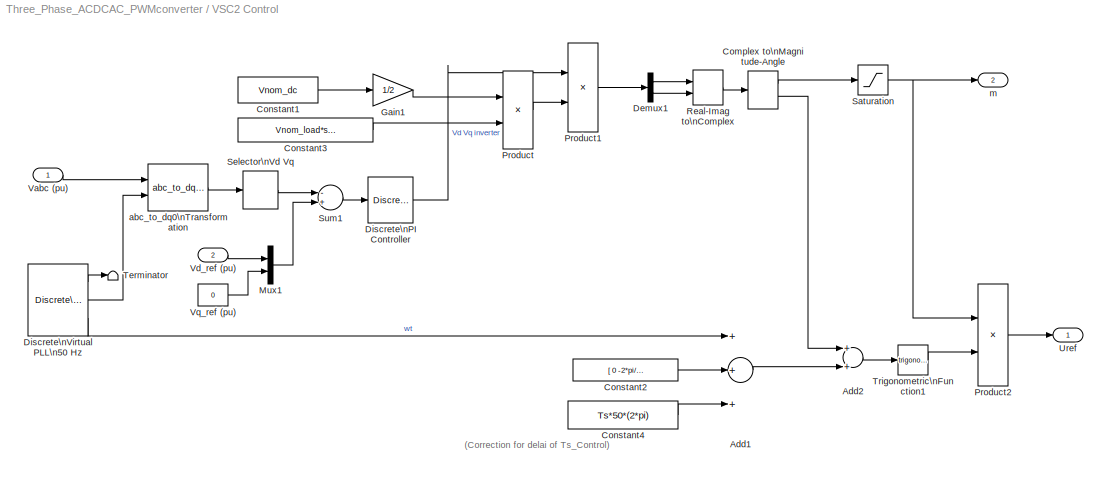
BLOCK [SubSystem] VSC2 Control 
  Ports = [2, 2]
  RequestExecContextInheritance = off
  SID = 29
BLOCK [Sum] VSC2 Control /Add1
  InputSameDT = off
  Inputs = +++
  OutDataTypeStr = Inherit: Inherit via internal rule
  Ports = [3, 1]
  SID = 222
  SaturateOnIntegerOverflow = off
BLOCK [Sum] VSC2 Control /Add2
  InputSameDT = off
  OutDataTypeStr = Inherit: Inherit via internal rule
  Ports = [2, 1]
  SID = 223
  SaturateOnIntegerOverflow = off
BLOCK [ComplexToMagnitudeAngle] VSC2 Control /Complex to\nMagnitude-Angle
  Ports = [1, 2]
  SID = 232
BLOCK [Constant] VSC2 Control /Constant1
  SID = 210
  Value = Vnom_dc
BLOCK [Constant] VSC2 Control /Constant2
  SID = 225
  Value = [ 0  -2*pi/3  2*pi/3  ]
BLOCK [Constant] VSC2 Control /Constant3
  SID = 211
  Value = Vnom_load*sqrt(2)/sqrt(3)
BLOCK [Constant] VSC2 Control /Constant4
  SID = 230
  Value = Ts*50*(2*pi)
BLOCK [Demux] VSC2 Control /Demux1
  DisplayOption = bar
  Outputs = 2
  Ports = [1, 2]
  SID = 233
BLOCK [Reference] VSC2 Control /Discrete\nPI Controller  REF=powerlib_extras/Discrete \nControl Blocks/Discrete\nPI Controller
  Init = 0
  Ki = Ki
  Kp = Kp
  Par_Limits = [1 -1]
  Ports = [1, 1]
  RTWMemSecDataConstants = Inherit from model
  RTWMemSecDataInternal = Inherit from model
  RTWMemSecDataParameters = Inherit from model
  RTWMemSecFuncExecute = Inherit from model
  RTWMemSecFuncInitTerm = Inherit from model
  SID = 33
  SourceBlock = powerlib_extras/Discrete \nControl Blocks/Discrete\nPI Controller
  SourceProductBaseCode = PS
  SourceProductName = Simscape Electrical
  SourceType = Discrete PI Controller
  Ts = Ts
BLOCK [Reference] VSC2 Control /Discrete\nVirtual PLL\n50 Hz  REF=powerlib_extras/Discrete \nControl Blocks/Discrete\nVirtual PLL
  Freq = 50
  Phase = 0
  Ports = [0, 3]
  RTWMemSecDataConstants = Inherit from model
  RTWMemSecDataInternal = Inherit from model
  RTWMemSecDataParameters = Inherit from model
  RTWMemSecFuncExecute = Inherit from model
  RTWMemSecFuncInitTerm = Inherit from model
  SID = 34
  SourceBlock = powerlib_extras/Discrete \nControl Blocks/Discrete\nVirtual PLL
  SourceProductBaseCode = PS
  SourceProductName = Simscape Electrical
  SourceType = Discrete Virtual PLL
  Ts = Ts
BLOCK [Gain] VSC2 Control /Gain1
  Gain = 1/2
  OutDataTypeStr = Inherit: Inherit via internal rule
  ParamDataTypeStr = Inherit: Inherit via internal rule
  SID = 212
  SaturateOnIntegerOverflow = off
BLOCK [Mux] VSC2 Control /Mux1
  DisplayOption = bar
  Inputs = 2
  Ports = [2, 1]
  SID = 36
BLOCK [Product] VSC2 Control /Product
  InputSameDT = off
  Inputs = */
  OutDataTypeStr = Inherit: Inherit via internal rule
  Ports = [2, 1]
  SID = 213
  SaturateOnIntegerOverflow = off
BLOCK [Product] VSC2 Control /Product1
  InputSameDT = off
  Inputs = */
  OutDataTypeStr = Inherit: Inherit via internal rule
  Ports = [2, 1]
  SID = 214
  SaturateOnIntegerOverflow = off
BLOCK [Product] VSC2 Control /Product2
  InputSameDT = off
  Inputs = **
  OutDataTypeStr = Inherit: Inherit via internal rule
  Ports = [2, 1]
  SID = 219
  SaturateOnIntegerOverflow = off
BLOCK [RealImagToComplex] VSC2 Control /Real-Imag to\nComplex
  Ports = [2, 1]
  SID = 234
BLOCK [Saturate] VSC2 Control /Saturation
  InputPortMap = u0
  LowerLimit = 0
  Ports = [1, 1]
  SID = 235
  UpperLimit = 1
BLOCK [Selector] VSC2 Control /Selector\nVd Vq
  IndexOptions = Index vector (dialog)
  Indices = [1 2]
  InputPortWidth = 3
  OutputSizes = 1
  Ports = [1, 1]
  SID = 38
BLOCK [Sum] VSC2 Control /Sum1
  Inputs = -+
  Ports = [2, 1]
  SID = 39
BLOCK [Terminator] VSC2 Control /Terminator
  SID = 40
BLOCK [Trigonometry] VSC2 Control /Trigonometric\nFunction1
  Ports = [1, 1]
  SID = 229
BLOCK [Outport] VSC2 Control /Uref
  IconDisplay = Port number
  SID = 46
BLOCK [Inport] VSC2 Control /Vabc (pu)
  IconDisplay = Port number
  SID = 30
BLOCK [Inport] VSC2 Control /Vd_ref (pu)
  IconDisplay = Port number
  Port = 2
  SID = 31
BLOCK [Constant] VSC2 Control /Vq_ref (pu)
  SID = 43
  Value = 0
BLOCK [Reference] VSC2 Control /abc_to_dq0\nTransformation  REF=powerlib_extras/Measurements/abc_to_dq0\nTransformation
  Ports = [2, 1]
  RTWMemSecDataConstants = Inherit from model
  RTWMemSecDataInternal = Inherit from model
  RTWMemSecDataParameters = Inherit from model
  RTWMemSecFuncExecute = Inherit from model
  RTWMemSecFuncInitTerm = Inherit from model
  SID = 44
  SourceBlock = powerlib_extras/Measurements/abc_to_dq0\nTransformation
  SourceProductBaseCode = PS
  SourceProductName = Simscape Electrical
  SourceType = abc to dq0 Transformation
BLOCK [Outport] VSC2 Control /m
  IconDisplay = Port number
  Port = 2
  SID = 236
BLOCK [Reference] Vab_VSC1  REF=powerlib/Measurements/Voltage Measurement
  AttributesFormatString = \\n
  OutputType = Magnitude
  PSBequivalent = 0
  PhasorSimulation = off
  Ports = [0, 1, 0, 0, 0, 2]
  RTWMemSecDataConstants = Inherit from model
  RTWMemSecDataInternal = Inherit from model
  RTWMemSecDataParameters = Inherit from model
  RTWMemSecFuncExecute = Inherit from model
  RTWMemSecFuncInitTerm = Inherit from model
  SID = 140
  SourceBlock = powerlib/Measurements/Voltage Measurement
  SourceProductBaseCode = PS
  SourceProductName = Simscape Electrical
  SourceType = Voltage Measurement
  Tag = PoWeRsYsTeMmEaSuReMeNt
BLOCK [Reference] Vab_VSC2  REF=powerlib/Measurements/Voltage Measurement
  AttributesFormatString = \\n
  OutputType = Magnitude
  PSBequivalent = 0
  PhasorSimulation = off
  Ports = [0, 1, 0, 0, 0, 2]
  RTWMemSecDataConstants = Inherit from model
  RTWMemSecDataInternal = Inherit from model
  RTWMemSecDataParameters = Inherit from model
  RTWMemSecFuncExecute = Inherit from model
  RTWMemSecFuncInitTerm = Inherit from model
  SID = 26
  SourceBlock = powerlib/Measurements/Voltage Measurement
  SourceProductBaseCode = PS
  SourceProductName = Simscape Electrical
  SourceType = Voltage Measurement
  Tag = PoWeRsYsTeMmEaSuReMeNt
BLOCK [Reference] Vdc   REF=powerlib/Measurements/Voltage Measurement
  AttributesFormatString = \\n
  OutputType = Magnitude
  PSBequivalent = 0
  PhasorSimulation = off
  Ports = [0, 1, 0, 0, 0, 2]
  RTWMemSecDataConstants = Inherit from model
  RTWMemSecDataInternal = Inherit from model
  RTWMemSecDataParameters = Inherit from model
  RTWMemSecFuncExecute = Inherit from model
  RTWMemSecFuncInitTerm = Inherit from model
  SID = 132
  SourceBlock = powerlib/Measurements/Voltage Measurement
  SourceProductBaseCode = PS
  SourceProductName = Simscape Electrical
  SourceType = Voltage Measurement
  Tag = PoWeRsYsTeMmEaSuReMeNt
BLOCK [Constant] Vref (pu) 
  SID = 48
BLOCK [Reference] choke  REF=powerlib/Elements/Three-Phase\nSeries RLC Branch
  AttributesFormatString = \\n
  BranchType = RL
  Capacitance = inf
  Inductance = 2e-3
  LConnTagsString = A|B|C
  Measurements = None
  Ports = [0, 0, 0, 0, 0, 3, 3]
  RConnTagsString = A|B|C
  Resistance = 2e-3*(2*pi*60)/50
  SID = 51
  SourceBlock = powerlib/Elements/Three-Phase\nSeries RLC Branch
  SourceProductBaseCode = PS
  SourceProductName = Simscape Electrical
  SourceType = Three-Phase Series RLC Branch
BLOCK [Reference] powergui  REF=powerlib/powergui
  AutomaticDiscreteSolvers = off
  ContinueOnMaxIteration = off
  CurrentSourceSwitches = off
  DisableRonSwitches = off
  DisableSnubberDevices = off
  DisableVfSwitches = off
  DisplayEquations = off
  DisplayStyle = off
  EnableUseOfTLC = off
  ErrMax = 1e-4
  ExternalGateDelay = off
  Frange = [0:2:500]
  FreqAxis = off
  FunctionMessages = off
  HookPort = off
  Interpol = off
  Iterations = 50
  MaxFrequency = 7000
  NonlinearTolerance = 1e-4
  Pbase = 100e6
  Ports = []
  Priority = 2
  RTWMemSecDataConstants = Inherit from model
  RTWMemSecDataInternal = Inherit from model
  RTWMemSecDataParameters = Inherit from model
  RTWMemSecFuncExecute = Inherit from model
  RTWMemSecFuncInitTerm = Inherit from model
  ResistiveCurrentMeasurement = off
  RestoreLinks = warning
  RmsSteady = 1
  SID = 49
  SPID = off
  SampleTime = Ts
  ShowGrid = off
  SolverType = Tustin
  SourceBlock = powerlib/powergui
  SourceProductBaseCode = PS
  SourceProductName = Simscape Electrical
  SourceType = PSB option menu block
  StartTime = 0.1-2/50
  SwTol = 0
  Ts = 0
  UnitsV = kV
  UnitsW = MW
  Xlog = on
  Ylog = off
  ZoomFFT = on
  buscounter = 0
  cycles = 2
  display = off
  echomessages = on
  frequency = 60
  frequencyindice = 60
  frequencyindicesteady = 1
  fundamental = 50
  methode = off
  nMaxIteration = 100
  save = off
  structure = psbbridges_str
  variable = ZData
  x0status = blocks
ANNOTATION (root): Choke: 2 mH -> Z= 2e-3*(2*pi*60)/(380^2/50e3)= 0.26 pu \nC= 1800e-6 F-> T= Wc/Pnom= 0.5*1800e-6*680^2/50e3= 0.0083s = 1/2 cycle
ANNOTATION (root): Gilbert Sybille, Pierre Giroux\nHydro-Quebec (IREQ)
ANNOTATION (root): The 'PreLoadFcn' automatically sets\nTs=2e-6 ; Ts_Control=100e-6
ANNOTATION (root): Three-Phase AC-DC-AC PWM converter
ANNOTATION (root): VSC1 controls DC link voltage (Vdc=680 V)\nand VSC power factor on 60 Hz grid (PF=1.0)\nPWM frequency =33*60= 1980 Hz
ANNOTATION (root): VSC2 controls load voltage \n(VLL=380 Vrms 50 Hz) \nPWM frequency = 2000 Hz
ANNOTATION VSC1 Control: VSC Main Controller
ANNOTATION VSC1 Control/Current Regulator: (Vd_prim - Vd_conv) ~= + Iq * Ltot
ANNOTATION VSC1 Control/Current Regulator: (Vq_prim - Vq_conv) ~ = - Id * Ltot
ANNOTATION VSC1 Control/Current Regulator: Current Regulator \n(with feedforward)
ANNOTATION VSC1 Control/Current Regulator: For Ltot >> Rtot :
ANNOTATION VSC1 Control/Current Regulator: Id positive --> The converter generates active power (\"Inverter mode\") = Active Power P positive
ANNOTATION VSC1 Control/Current Regulator: Iq positive --> The converter absorbs reactive power (\"Inductive mode\") = Reactive Power Q negative
ANNOTATION VSC1 Control/Current Regulator: Ltot = Lxfo + Lchoke \nRtot = Rxfo + Rchoke
ANNOTATION VSC1 Control/Current Regulator: Sign Convention: Current going out of the converter = positive current
ANNOTATION VSC1 Control/Current Regulator: Vd_mes + Id*R - Iq*L + deriv(Id)*L= Vd_conv
ANNOTATION VSC1 Control/Current Regulator: Vq_mes + Id*L + Iq*R + deriv(Iq)*L= Vq_conv
ANNOTATION VSC1 Control/Current Regulator: harmonic filter neglected
ANNOTATION VSC1 Control/Uabc_ref Generation \nmax (m) = 1: (Correction for delai of Ts_Control)
ANNOTATION VSC1 Control/Uabc_ref Generation \nmax (m) = 1: (Correction for transformer\n D1 connection)
ANNOTATION VSC2 Control : (Correction for delai of Ts_Control)
LINE Discrete 3-phase \nPositive-Sequence \nActive & Reactive Power:1 -> Terminator2:1
LINE Discrete 3-phase \nPositive-Sequence \nActive & Reactive Power:2 -> VA->kVA:1
LINE From10:1 -> VSC1 Control:1
LINE From11:1 -> V2pu:1
LINE From12:1 -> Discrete 3-phase \nPositive-Sequence \nActive & Reactive Power:1
LINE From13:1 -> Discrete 3-phase \nPositive-Sequence \nActive & Reactive Power:2
LINE From1:1 -> Scope2:1
LINE From2:1 -> Scope1:2
LINE From3:1 -> Scope1:3
LINE From4:1 -> Scope1:5
LINE From5:1 -> Scope1:4
LINE From6:1 -> Scope2:3
LINE From7:1 -> Scope2:2
LINE From8:1 -> VSC2 Control :1
LINE From9:1 -> VSC1 Control:2
LINE From:1 -> VSC1 Control:3
LINE PWM Generator\n2 kHz1:1 -> VSC1:1
LINE PWM Generator\n2 kHz:1 -> VSC2:1
LINE Unit Delay1:1 -> PWM Generator\n2 kHz1:1
LINE Unit Delay2:1 -> PWM Generator\n2 kHz:1
LINE V2pu:1 -> Scope1:1
LINE VA->kVA:1 -> PQ _B1\n(kW kvar):1
LINE VSC1 Control/Current Regulator/Add1:1 -> VSC1 Control/Current Regulator/Mux:1
LINE VSC1 Control/Current Regulator/Add2:1 -> VSC1 Control/Current Regulator/Saturation:1
LINE VSC1 Control/Current Regulator/Add3:1 -> VSC1 Control/Current Regulator/Mux:2
NET VSC1 Control/Current Regulator/Demux1:1 -> VSC1 Control/Current Regulator/Ltot_pu2:1, VSC1 Control/Current Regulator/Rtot_pu1:1
NET VSC1 Control/Current Regulator/Demux1:2 -> VSC1 Control/Current Regulator/Ltot_pu1:1, VSC1 Control/Current Regulator/Rtot_pu5:1
LINE VSC1 Control/Current Regulator/Demux:1 -> VSC1 Control/Current Regulator/Add1:1
LINE VSC1 Control/Current Regulator/Demux:2 -> VSC1 Control/Current Regulator/Add3:1
LINE VSC1 Control/Current Regulator/IdIq_mes:1 -> VSC1 Control/Current Regulator/Sum:1
NET VSC1 Control/Current Regulator/IdIq_ref:1 -> VSC1 Control/Current Regulator/Demux1:1, VSC1 Control/Current Regulator/Sum:2
LINE VSC1 Control/Current Regulator/Ltot_pu1:1 -> VSC1 Control/Current Regulator/Add1:3
LINE VSC1 Control/Current Regulator/Ltot_pu2:1 -> VSC1 Control/Current Regulator/Add3:3
NET VSC1 Control/Current Regulator/Mux:1 -> VSC1 Control/Current Regulator/Add2:2, VSC1 Control/Current Regulator/PI_Ireg1:1
LINE VSC1 Control/Current Regulator/PI:1 -> VSC1 Control/Current Regulator/Add2:1
LINE VSC1 Control/Current Regulator/Rtot_pu1:1 -> VSC1 Control/Current Regulator/Add1:2
LINE VSC1 Control/Current Regulator/Rtot_pu5:1 -> VSC1 Control/Current Regulator/Add3:2
LINE VSC1 Control/Current Regulator/Saturation:1 -> VSC1 Control/Current Regulator/VdVq_conv:1
LINE VSC1 Control/Current Regulator/Sum:1 -> VSC1 Control/Current Regulator/PI:1
LINE VSC1 Control/Current Regulator/VdVq_mes:1 -> VSC1 Control/Current Regulator/Demux:1
LINE VSC1 Control/Current Regulator:1 -> VSC1 Control/Uabc_ref Generation \nmax (m) = 1:2
LINE VSC1 Control/Gain:1 -> VSC1 Control/PLL & Measurements:2
LINE VSC1 Control/Iabc_prim:1 -> VSC1 Control/Gain:1
LINE VSC1 Control/Iq_ref:1 -> VSC1 Control/Mux:2
LINE VSC1 Control/Mux:1 -> VSC1 Control/Current Regulator:3
LINE VSC1 Control/PLL & Measurements/Iabc_prim:1 -> VSC1 Control/PLL & Measurements/V->pu1:1
LINE VSC1 Control/PLL & Measurements/PLL:1 -> VSC1 Control/PLL & Measurements/Terminator:1
LINE VSC1 Control/PLL & Measurements/PLL:2 -> VSC1 Control/PLL & Measurements/wt:1
NET VSC1 Control/PLL & Measurements/PLL:3 -> VSC1 Control/PLL & Measurements/abc_to_dq0\nTransformation1:2, VSC1 Control/PLL & Measurements/abc_to_dq0\nTransformation2:2
LINE VSC1 Control/PLL & Measurements/Selector1:1 -> VSC1 Control/PLL & Measurements/IdIq_prim:1
LINE VSC1 Control/PLL & Measurements/Selector2:1 -> VSC1 Control/PLL & Measurements/VdVq_prim:1
LINE VSC1 Control/PLL & Measurements/V->pu1:1 -> VSC1 Control/PLL & Measurements/abc_to_dq0\nTransformation2:1
NET VSC1 Control/PLL & Measurements/V->pu:1 -> VSC1 Control/PLL & Measurements/PLL:1, VSC1 Control/PLL & Measurements/abc_to_dq0\nTransformation1:1
LINE VSC1 Control/PLL & Measurements/Vabc_prim:1 -> VSC1 Control/PLL & Measurements/V->pu:1
LINE VSC1 Control/PLL & Measurements/abc_to_dq0\nTransformation1:1 -> VSC1 Control/PLL & Measurements/Selector2:1
LINE VSC1 Control/PLL & Measurements/abc_to_dq0\nTransformation2:1 -> VSC1 Control/PLL & Measurements/Selector1:1
LINE VSC1 Control/PLL & Measurements:1 -> VSC1 Control/Uabc_ref Generation \nmax (m) = 1:1
LINE VSC1 Control/PLL & Measurements:2 -> VSC1 Control/Current Regulator:1
LINE VSC1 Control/PLL & Measurements:3 -> VSC1 Control/Current Regulator:2
LINE VSC1 Control/Uabc_ref Generation \nmax (m) = 1/Add1:1 -> VSC1 Control/Uabc_ref Generation \nmax (m) = 1/Add2:2
LINE VSC1 Control/Uabc_ref Generation \nmax (m) = 1/Add2:1 -> VSC1 Control/Uabc_ref Generation \nmax (m) = 1/Trigonometric\nFunction:1
LINE VSC1 Control/Uabc_ref Generation \nmax (m) = 1/Complex to\nMagnitude-Angle:1 -> VSC1 Control/Uabc_ref Generation \nmax (m) = 1/Saturation:1
LINE VSC1 Control/Uabc_ref Generation \nmax (m) = 1/Complex to\nMagnitude-Angle:2 -> VSC1 Control/Uabc_ref Generation \nmax (m) = 1/Add2:1
LINE VSC1 Control/Uabc_ref Generation \nmax (m) = 1/Constant1:1 -> VSC1 Control/Uabc_ref Generation \nmax (m) = 1/Gain1:1
LINE VSC1 Control/Uabc_ref Generation \nmax (m) = 1/Constant2:1 -> VSC1 Control/Uabc_ref Generation \nmax (m) = 1/Add1:2
LINE VSC1 Control/Uabc_ref Generation \nmax (m) = 1/Constant3:1 -> VSC1 Control/Uabc_ref Generation \nmax (m) = 1/Product:2
LINE VSC1 Control/Uabc_ref Generation \nmax (m) = 1/Constant4:1 -> VSC1 Control/Uabc_ref Generation \nmax (m) = 1/Add1:4
LINE VSC1 Control/Uabc_ref Generation \nmax (m) = 1/Constant:1 -> VSC1 Control/Uabc_ref Generation \nmax (m) = 1/Add1:3
LINE VSC1 Control/Uabc_ref Generation \nmax (m) = 1/Demux1:1 -> VSC1 Control/Uabc_ref Generation \nmax (m) = 1/Real-Imag to\nComplex:1
LINE VSC1 Control/Uabc_ref Generation \nmax (m) = 1/Demux1:2 -> VSC1 Control/Uabc_ref Generation \nmax (m) = 1/Real-Imag to\nComplex:2
LINE VSC1 Control/Uabc_ref Generation \nmax (m) = 1/Gain1:1 -> VSC1 Control/Uabc_ref Generation \nmax (m) = 1/Product:1
LINE VSC1 Control/Uabc_ref Generation \nmax (m) = 1/Product1:1 -> VSC1 Control/Uabc_ref Generation \nmax (m) = 1/Demux1:1
LINE VSC1 Control/Uabc_ref Generation \nmax (m) = 1/Product2:1 -> VSC1 Control/Uabc_ref Generation \nmax (m) = 1/Uabc_ref:1
LINE VSC1 Control/Uabc_ref Generation \nmax (m) = 1/Product:1 -> VSC1 Control/Uabc_ref Generation \nmax (m) = 1/Product1:2
LINE VSC1 Control/Uabc_ref Generation \nmax (m) = 1/Real-Imag to\nComplex:1 -> VSC1 Control/Uabc_ref Generation \nmax (m) = 1/Complex to\nMagnitude-Angle:1
NET VSC1 Control/Uabc_ref Generation \nmax (m) = 1/Saturation:1 -> VSC1 Control/Uabc_ref Generation \nmax (m) = 1/Goto1:1, VSC1 Control/Uabc_ref Generation \nmax (m) = 1/Product2:1
LINE VSC1 Control/Uabc_ref Generation \nmax (m) = 1/Trigonometric\nFunction:1 -> VSC1 Control/Uabc_ref Generation \nmax (m) = 1/Product2:2
LINE VSC1 Control/Uabc_ref Generation \nmax (m) = 1/VdVq_conv:1 -> VSC1 Control/Uabc_ref Generation \nmax (m) = 1/Product1:1
LINE VSC1 Control/Uabc_ref Generation \nmax (m) = 1/wt:1 -> VSC1 Control/Uabc_ref Generation \nmax (m) = 1/Add1:1
LINE VSC1 Control/Uabc_ref Generation \nmax (m) = 1:1 -> VSC1 Control/Uref:1
LINE VSC1 Control/VDC Regulator/PI:1 -> VSC1 Control/VDC Regulator/Id_ref:1
LINE VSC1 Control/VDC Regulator/Rtot_pu3:1 -> VSC1 Control/VDC Regulator/PI:1
LINE VSC1 Control/VDC Regulator/Sum:1 -> VSC1 Control/VDC Regulator/Rtot_pu3:1
LINE VSC1 Control/VDC Regulator/Vdc_mes:1 -> VSC1 Control/VDC Regulator/Sum:1
LINE VSC1 Control/VDC Regulator/Vdc_ref:1 -> VSC1 Control/VDC Regulator/Sum:2
LINE VSC1 Control/VDC Regulator:1 -> VSC1 Control/Mux:1
LINE VSC1 Control/Vabc_prim:1 -> VSC1 Control/PLL & Measurements:1
LINE VSC1 Control/Vdc_mes:1 -> VSC1 Control/VDC Regulator:1
LINE VSC1 Control/Vdc_ref1:1 -> VSC1 Control/VDC Regulator:2
LINE VSC1 Control:1 -> Unit Delay1:1
LINE VSC2 Control /Add1:1 -> VSC2 Control /Add2:2
LINE VSC2 Control /Add2:1 -> VSC2 Control /Trigonometric\nFunction1:1
LINE VSC2 Control /Complex to\nMagnitude-Angle:1 -> VSC2 Control /Saturation:1
LINE VSC2 Control /Complex to\nMagnitude-Angle:2 -> VSC2 Control /Add2:1
LINE VSC2 Control /Constant1:1 -> VSC2 Control /Gain1:1
LINE VSC2 Control /Constant2:1 -> VSC2 Control /Add1:2
LINE VSC2 Control /Constant3:1 -> VSC2 Control /Product:2
LINE VSC2 Control /Constant4:1 -> VSC2 Control /Add1:3
LINE VSC2 Control /Demux1:1 -> VSC2 Control /Real-Imag to\nComplex:1
LINE VSC2 Control /Demux1:2 -> VSC2 Control /Real-Imag to\nComplex:2
LINE VSC2 Control /Discrete\nPI Controller:1 -> VSC2 Control /Product1:1
LINE VSC2 Control /Discrete\nVirtual PLL\n50 Hz:1 -> VSC2 Control /Terminator:1
LINE VSC2 Control /Discrete\nVirtual PLL\n50 Hz:2 -> VSC2 Control /abc_to_dq0\nTransformation:2
LINE VSC2 Control /Discrete\nVirtual PLL\n50 Hz:3 -> VSC2 Control /Add1:1
LINE VSC2 Control /Gain1:1 -> VSC2 Control /Product:1
LINE VSC2 Control /Mux1:1 -> VSC2 Control /Sum1:2
LINE VSC2 Control /Product1:1 -> VSC2 Control /Demux1:1
LINE VSC2 Control /Product2:1 -> VSC2 Control /Uref:1
LINE VSC2 Control /Product:1 -> VSC2 Control /Product1:2
LINE VSC2 Control /Real-Imag to\nComplex:1 -> VSC2 Control /Complex to\nMagnitude-Angle:1
NET VSC2 Control /Saturation:1 -> VSC2 Control /Product2:1, VSC2 Control /m:1
LINE VSC2 Control /Selector\nVd Vq:1 -> VSC2 Control /Sum1:1
LINE VSC2 Control /Sum1:1 -> VSC2 Control /Discrete\nPI Controller:1
LINE VSC2 Control /Trigonometric\nFunction1:1 -> VSC2 Control /Product2:2
LINE VSC2 Control /Vabc (pu):1 -> VSC2 Control /abc_to_dq0\nTransformation:1
LINE VSC2 Control /Vd_ref (pu):1 -> VSC2 Control /Mux1:1
LINE VSC2 Control /Vq_ref (pu):1 -> VSC2 Control /Mux1:2
LINE VSC2 Control /abc_to_dq0\nTransformation:1 -> VSC2 Control /Selector\nVd Vq:1
LINE VSC2 Control :1 -> Unit Delay2:1
LINE VSC2 Control :2 -> Goto4:1
LINE Vab_VSC1:1 -> Goto1:1
LINE Vab_VSC2:1 -> Goto2:1
LINE Vdc :1 -> Goto5:1
LINE Vref (pu) :1 -> VSC2 Control :2
PLINE 25 kV, 60 Hz\n10 MVA:RConn1 -- B1:LConn1
PLINE 25 kV, 60 Hz\n10 MVA:RConn2 -- B1:LConn2
PLINE 25 kV, 60 Hz\n10 MVA:RConn3 -- B1:LConn3
PNET net1: 25 kW \n380 V rms\n50 Hz:LConn1 -- Brk:LConn1 -- Measure:RConn1
PNET net2: 25 kW \n380 V rms\n50 Hz:LConn2 -- Brk:LConn2 -- Measure:RConn2
PNET net3: 25 kW \n380 V rms\n50 Hz:LConn3 -- Brk:LConn3 -- Measure:RConn3
PLINE 25 kW \n380 V rms\n50 Hz_:LConn1 -- Brk:RConn1
PLINE 25 kW \n380 V rms\n50 Hz_:LConn2 -- Brk:RConn2
PLINE 25 kW \n380 V rms\n50 Hz_:LConn3 -- Brk:RConn3
PLINE 25kV // 380V\n50 kVA:LConn1 -- B1:RConn1
PLINE 25kV // 380V\n50 kVA:LConn2 -- B1:RConn2
PLINE 25kV // 380V\n50 kVA:LConn3 -- B1:RConn3
PNET net4: 25kV // 380V\n50 kVA:RConn1 -- Filter\n5 kvar\nQ=100:LConn1 -- choke:LConn1
PNET net5: 25kV // 380V\n50 kVA:RConn2 -- Filter\n5 kvar\nQ=100:LConn2 -- choke:LConn2
PNET net6: 25kV // 380V\n50 kVA:RConn3 -- Filter\n5 kvar\nQ=100:LConn3 -- choke:LConn3
PNET net7: C:LConn1 -- VSC1:RConn1 -- VSC2:RConn1 -- Vdc :LConn1
PNET net8: C:RConn1 -- VSC1:RConn2 -- VSC2:RConn2 -- Vdc :LConn2
PLINE LC Filter/4 mH :LConn1 -- LC Filter/A:RConn1
PLINE LC Filter/4 mH :LConn2 -- LC Filter/B:RConn1
PLINE LC Filter/4 mH :LConn3 -- LC Filter/C:RConn1
PNET net9: LC Filter/4 mH :RConn1 -- LC Filter/8kvar:LConn1 -- LC Filter/A :RConn1
PNET net10: LC Filter/4 mH :RConn2 -- LC Filter/8kvar:LConn2 -- LC Filter/B :RConn1
PNET net11: LC Filter/4 mH :RConn3 -- LC Filter/8kvar:LConn3 -- LC Filter/C :RConn1
PNET net12: LC Filter:LConn1 -- VSC2:LConn1 -- Vab_VSC2:LConn1
PNET net13: LC Filter:LConn2 -- VSC2:LConn2 -- Vab_VSC2:LConn2
PLINE LC Filter:LConn3 -- VSC2:LConn3
PLINE LC Filter:RConn1 -- Measure:LConn1
PLINE LC Filter:RConn2 -- Measure:LConn2
PLINE LC Filter:RConn3 -- Measure:LConn3
PNET net14: VSC1:LConn1 -- Vab_VSC1:LConn1 -- choke:RConn1
PNET net15: VSC1:LConn2 -- Vab_VSC1:LConn2 -- choke:RConn2
PLINE VSC1:LConn3 -- choke:RConn3
note: NET lines group one-source signal fan-out (src -> all destinations, sorted); 1:1 wires keep LINE; PNET lines group multi-terminal physical nets as a canonical sorted terminal list (undirected conserving connections); 2-terminal nets keep the pairwise PLINE form
